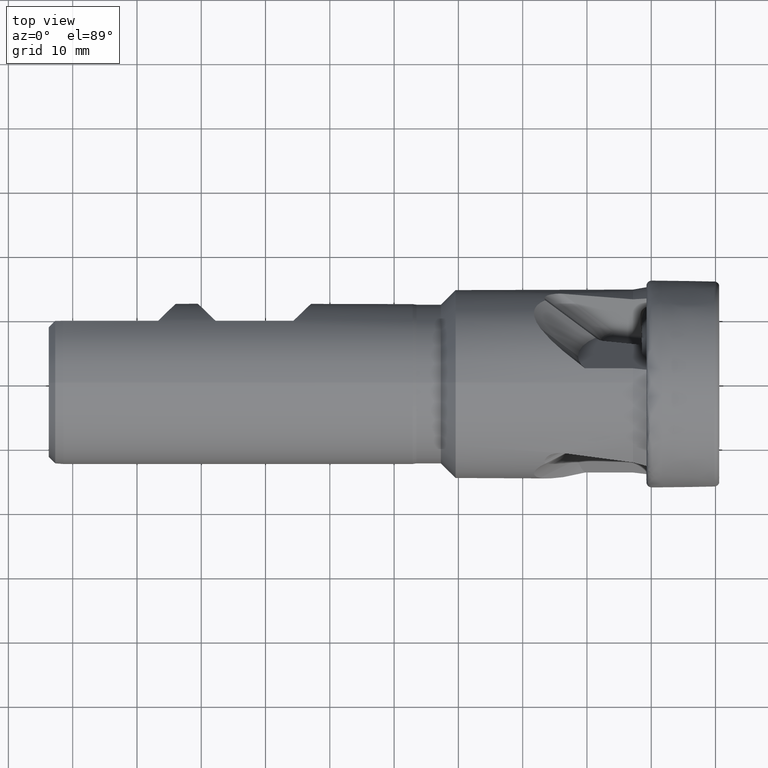
[diagram: clean part render]
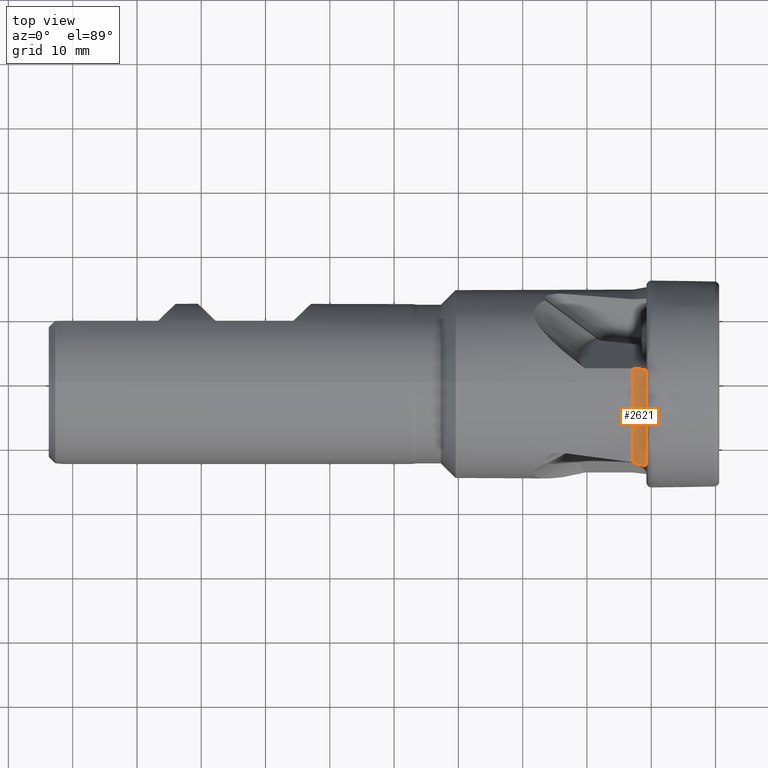
[diagram: same view with one face highlighted and labeled with its STEP entity id]
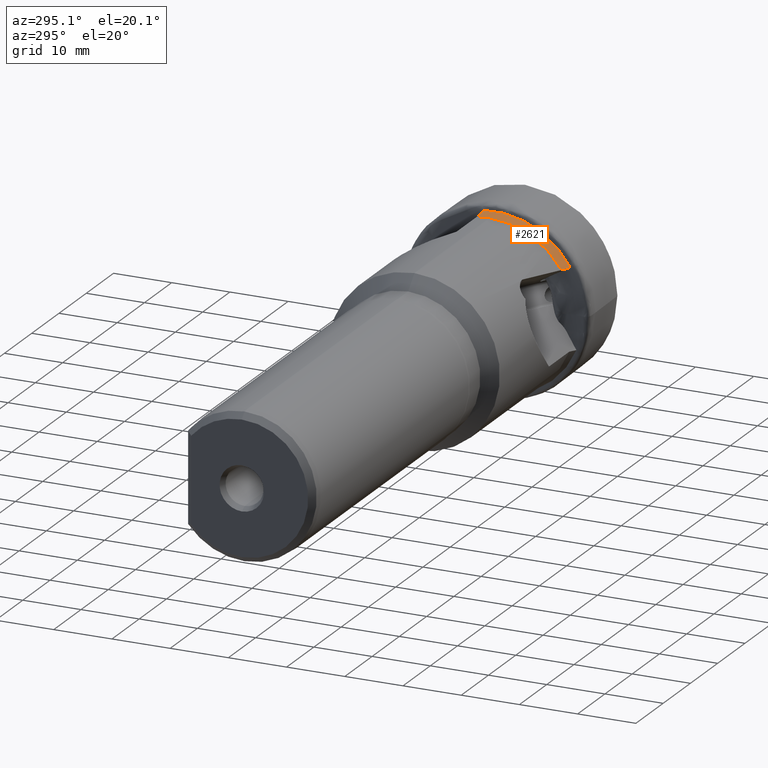
[diagram: same view with one face highlighted and labeled with its STEP entity id]
A machine part, top view. The second image highlights one B-rep face of the part: STEP entity #2621.
A second angle (auxiliary view) of the same face is appended — the face is thin or edge-on in the first view.
In plain terms, the highlighted conical surface has half-angle 10 deg.
Its self-contained STEP definition (entity closure, byte-faithful):
#713 = CIRCLE ( 'NONE', #6166, 14.69000000000000000 ) ;
#811 = EDGE_CURVE ( 'NONE', #5478, #5472, #970, .T. ) ;
#970 =( BOUNDED_CURVE ( )  B_SPLINE_CURVE ( 3, ( #3400, #3406, #3405, #3363 ),
 .UNSPECIFIED., .F., .T. ) 
 B_SPLINE_CURVE_WITH_KNOTS ( ( 4, 4 ),
 ( 2.550038088137637400, 2.566738240983224500 ),
 .UNSPECIFIED. ) 
 CURVE ( )  GEOMETRIC_REPRESENTATION_ITEM ( )  RATIONAL_B_SPLINE_CURVE ( ( 1.000000000000000000, 0.9999767588762831200, 0.9999767588762831200, 1.000000000000000000 ) ) 
 REPRESENTATION_ITEM ( '' )  );
#1649 = EDGE_LOOP ( 'NONE', ( #8303, #8304, #8305, #8306, #8307 ) ) ;
#2029 = CARTESIAN_POINT ( 'NONE',  ( -12.83564090980896200, 0.0000000000000000000, 0.0000000000000000000 ) ) ;
#2030 = DIRECTION ( 'NONE',  ( 1.000000000000000000, -0.0000000000000000000, -0.0000000000000000000 ) ) ;
#2031 = DIRECTION ( 'NONE',  ( 0.0000000000000000000, 0.0000000000000000000, -1.000000000000000000 ) ) ;
#2621 = ADVANCED_FACE ( 'NONE', ( #4915 ), #4921, .T. ) ;
#2742 = VERTEX_POINT ( 'NONE', #5061 ) ;
#2761 = VERTEX_POINT ( 'NONE', #5056 ) ;
#3363 = CARTESIAN_POINT ( 'NONE',  ( -12.83564090980896000, -12.34330079101443900, 7.964861931166376900 ) ) ;
#3400 = CARTESIAN_POINT ( 'NONE',  ( -10.74335849155812800, -12.89501095284813600, 7.777527886720992700 ) ) ;
#3405 = CARTESIAN_POINT ( 'NONE',  ( -12.14704847444982000, -12.52682823321955200, 7.904382232648984500 ) ) ;
#3406 = CARTESIAN_POINT ( 'NONE',  ( -11.44960479232459600, -12.71073589471816900, 7.841936099848894100 ) ) ;
#3815 = EDGE_CURVE ( 'NONE', #2761, #2742, #713, .T. ) ;
#4711 = DIRECTION ( 'NONE',  ( 0.0000000000000000000, 0.0000000000000000000, -1.000000000000000000 ) ) ;
#4712 = CARTESIAN_POINT ( 'NONE',  ( -10.00000000000000200, 0.0000000000000000000, 0.0000000000000000000 ) ) ;
#4713 = DIRECTION ( 'NONE',  ( 1.000000000000000000, -0.0000000000000000000, -0.0000000000000000000 ) ) ;
#4818 = AXIS2_PLACEMENT_3D ( 'NONE', #7386, #7387, #7388 ) ;
#4819 = AXIS2_PLACEMENT_3D ( 'NONE', #7413, #7414, #7415 ) ;
#4915 = FACE_OUTER_BOUND ( 'NONE', #1649, .T. ) ;
#4921 = CONICAL_SURFACE ( 'NONE', #6129, 15.19000000000000000, 0.1745329251994262000 ) ;
#5056 = CARTESIAN_POINT ( 'NONE',  ( -12.83564090980896200, 2.197290358037774700, 14.52473803834252300 ) ) ;
#5061 = CARTESIAN_POINT ( 'NONE',  ( -12.83564090980896200, 1.799006147947461900E-015, 14.69000000000000000 ) ) ;
#5472 = VERTEX_POINT ( 'NONE', #6325 ) ;
#5476 = VERTEX_POINT ( 'NONE', #6329 ) ;
#5478 = VERTEX_POINT ( 'NONE', #6331 ) ;
#5721 = EDGE_CURVE ( 'NONE', #2742, #5472, #5784, .T. ) ;
#5725 = EDGE_CURVE ( 'NONE', #5476, #5478, #5788, .T. ) ;
#5726 = EDGE_CURVE ( 'NONE', #5476, #2761, #5954, .T. ) ;
#5784 = CIRCLE ( 'NONE', #4818, 14.69000000000000000 ) ;
#5788 = CIRCLE ( 'NONE', #4819, 15.05892584159956000 ) ;
#5954 = B_SPLINE_CURVE_WITH_KNOTS ( 'NONE', 3,
 ( #7411, #7412, #7417, #7418 ),
 .UNSPECIFIED., .F., .F.,
 ( 4, 4 ),
 ( 0.0007611664085263850000, 0.002903918824797772700 ),
 .UNSPECIFIED. ) ;
#6129 = AXIS2_PLACEMENT_3D ( 'NONE', #4712, #4713, #4711 ) ;
#6166 = AXIS2_PLACEMENT_3D ( 'NONE', #2029, #2030, #2031 ) ;
#6325 = CARTESIAN_POINT ( 'NONE',  ( -12.83564090980896000, -12.34330079101443900, 7.964861931166376900 ) ) ;
#6329 = CARTESIAN_POINT ( 'NONE',  ( -10.74335849155812600, 1.973152477967428300, 14.92909631563432000 ) ) ;
#6331 = CARTESIAN_POINT ( 'NONE',  ( -10.74335849155812800, -12.89501095284813600, 7.777527886720992700 ) ) ;
#7386 = CARTESIAN_POINT ( 'NONE',  ( -12.83564090980896200, 0.0000000000000000000, 0.0000000000000000000 ) ) ;
#7387 = DIRECTION ( 'NONE',  ( 1.000000000000000000, -0.0000000000000000000, -0.0000000000000000000 ) ) ;
#7388 = DIRECTION ( 'NONE',  ( 0.0000000000000000000, 0.0000000000000000000, -1.000000000000000000 ) ) ;
#7411 = CARTESIAN_POINT ( 'NONE',  ( -10.74335849155812600, 1.973152477967428300, 14.92909631563432000 ) ) ;
#7412 = CARTESIAN_POINT ( 'NONE',  ( -11.44101057551530000, 2.047370581995533500, 14.79520236569194400 ) ) ;
#7413 = CARTESIAN_POINT ( 'NONE',  ( -10.74335849155812600, -2.486430196439896000E-015, 0.0000000000000000000 ) ) ;
#7414 = DIRECTION ( 'NONE',  ( 1.000000000000000000, 1.222363029739244700E-016, -0.0000000000000000000 ) ) ;
#7415 = DIRECTION ( 'NONE',  ( -1.151956981675755800E-016, 1.000000000000000000, 0.0000000000000000000 ) ) ;
#7417 = CARTESIAN_POINT ( 'NONE',  ( -12.13844839677850400, 2.122064072134067100, 14.66045079651173700 ) ) ;
#7418 = CARTESIAN_POINT ( 'NONE',  ( -12.83564090980896200, 2.197290358037774700, 14.52473803834252300 ) ) ;
#8303 = ORIENTED_EDGE ( 'NONE', *, *, #5725, .F. ) ;
#8304 = ORIENTED_EDGE ( 'NONE', *, *, #5726, .T. ) ;
#8305 = ORIENTED_EDGE ( 'NONE', *, *, #3815, .T. ) ;
#8306 = ORIENTED_EDGE ( 'NONE', *, *, #5721, .T. ) ;
#8307 = ORIENTED_EDGE ( 'NONE', *, *, #811, .F. ) ;